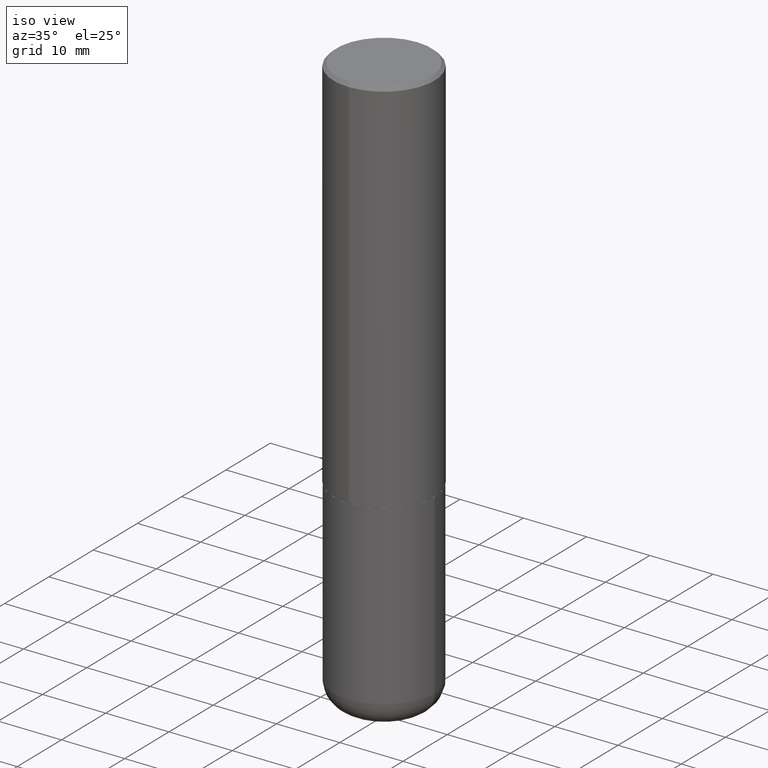
[diagram: clean part render]
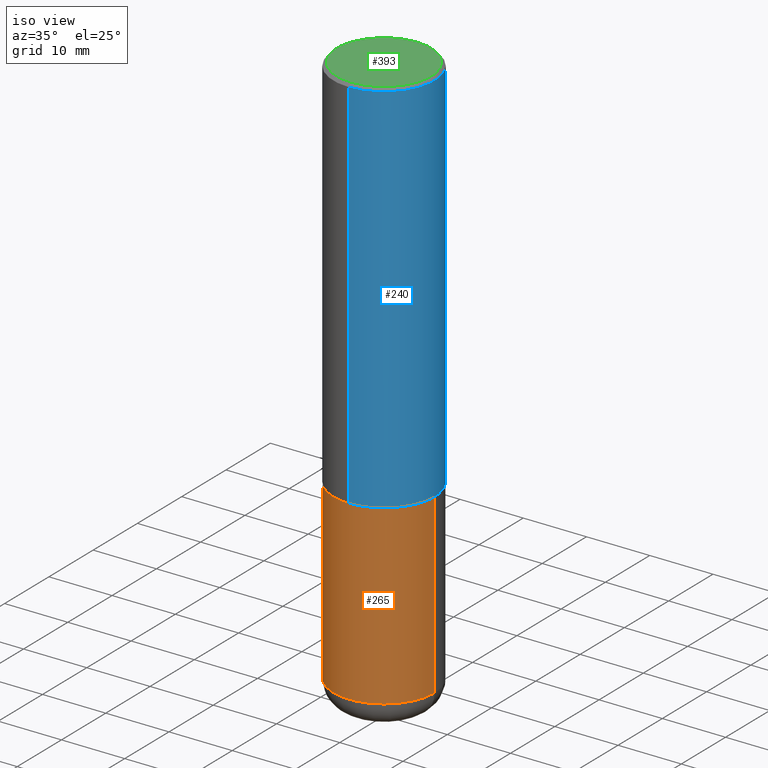
[diagram: same view with three faces highlighted in distinct colors, each labeled with its STEP entity id]
A machine part, iso view with three faces highlighted in distinct colors.
Their STEP definitions:

[orange] entity #265 — the highlighted cylindrical surface (partial cylindrical patch) has radius 7.9997 mm, axis along (-0, 0, 1).
#18 = VERTEX_POINT ( 'NONE', #328 ) ;
#39 = VERTEX_POINT ( 'NONE', #395 ) ;
#42 = CYLINDRICAL_SURFACE ( 'NONE', #179, 0.3149500000000000077 ) ;
#54 = CIRCLE ( 'NONE', #283, 0.3149500000000000632 ) ;
#58 = CARTESIAN_POINT ( 'NONE',  ( 5.776686413970529753E-29, -8.247577218615278049E-15, -2.362199999999999633 ) ) ;
#60 = VECTOR ( 'NONE', #163, 39.37007874015748143 ) ;
#96 = DIRECTION ( 'NONE',  ( -2.445468806185136597E-29, 3.491481338843145583E-15, 1.000000000000000000 ) ) ;
#99 = EDGE_CURVE ( 'NONE', #356, #18, #297, .T. ) ;
#102 = CARTESIAN_POINT ( 'NONE',  ( 0.000000000000000000, 0.000000000000000000, 0.000000000000000000 ) ) ;
#105 = DIRECTION ( 'NONE',  ( 1.000000000000000000, -6.982962677686266711E-15, 4.876176775795936353E-29 ) ) ;
#106 = LINE ( 'NONE', #144, #327 ) ;
#114 = EDGE_CURVE ( 'NONE', #125, #356, #54, .T. ) ;
#119 = CIRCLE ( 'NONE', #354, 0.3149500000000000077 ) ;
#122 = ORIENTED_EDGE ( 'NONE', *, *, #204, .F. ) ;
#125 = VERTEX_POINT ( 'NONE', #309 ) ;
#130 = DIRECTION ( 'NONE',  ( -2.445468806185136597E-29, 3.491481338843145583E-15, 1.000000000000000000 ) ) ;
#132 = ORIENTED_EDGE ( 'NONE', *, *, #114, .T. ) ;
#144 = CARTESIAN_POINT ( 'NONE',  ( -0.3149500000000000077, 2.237854346276435590E-15, -1.549218606675782676E-29 ) ) ;
#163 = DIRECTION ( 'NONE',  ( -2.445468806185136877E-29, 3.491481338843145188E-15, 1.000000000000000000 ) ) ;
#179 = AXIS2_PLACEMENT_3D ( 'NONE', #102, #130, #105 ) ;
#185 = DIRECTION ( 'NONE',  ( -2.445468806185136597E-29, 3.491481338843145583E-15, 1.000000000000000000 ) ) ;
#192 = ORIENTED_EDGE ( 'NONE', *, *, #99, .T. ) ;
#198 = CARTESIAN_POINT ( 'NONE',  ( 8.472326679028403758E-29, -1.209623709842207549E-14, -3.464499999999999247 ) ) ;
#204 = EDGE_CURVE ( 'NONE', #125, #39, #106, .T. ) ;
#211 = ORIENTED_EDGE ( 'NONE', *, *, #396, .F. ) ;
#226 = DIRECTION ( 'NONE',  ( 1.000000000000000000, -6.982962677686268288E-15, 0.000000000000000000 ) ) ;
#254 = EDGE_LOOP ( 'NONE', ( #122, #132, #192, #211 ) ) ;
#265 = ADVANCED_FACE ( 'NONE', ( #302 ), #42, .T. ) ;
#283 = AXIS2_PLACEMENT_3D ( 'NONE', #198, #96, #226 ) ;
#284 = CARTESIAN_POINT ( 'NONE',  ( 0.3149500000000001743, -1.429552119375936694E-14, -3.464499999999999247 ) ) ;
#297 = LINE ( 'NONE', #398, #60 ) ;
#302 = FACE_OUTER_BOUND ( 'NONE', #254, .T. ) ;
#309 = CARTESIAN_POINT ( 'NONE',  ( -0.3149500000000001743, -9.858382752145637926E-15, -3.464499999999999247 ) ) ;
#327 = VECTOR ( 'NONE', #345, 39.37007874015748143 ) ;
#328 = CARTESIAN_POINT ( 'NONE',  ( 0.3149500000000000077, -1.044686131395256792E-14, -2.362199999999999633 ) ) ;
#345 = DIRECTION ( 'NONE',  ( -2.445468806185136877E-29, 3.491481338843145188E-15, 1.000000000000000000 ) ) ;
#354 = AXIS2_PLACEMENT_3D ( 'NONE', #58, #185, #380 ) ;
#356 = VERTEX_POINT ( 'NONE', #284 ) ;
#380 = DIRECTION ( 'NONE',  ( 1.000000000000000000, -6.982962677686266711E-15, 0.000000000000000000 ) ) ;
#395 = CARTESIAN_POINT ( 'NONE',  ( -0.3149500000000000077, -7.934052812242240784E-15, -2.362199999999999633 ) ) ;
#396 = EDGE_CURVE ( 'NONE', #39, #18, #119, .T. ) ;
#398 = CARTESIAN_POINT ( 'NONE',  ( 0.3149500000000000077, -2.199284095337289871E-15, 1.535751875536930130E-29 ) ) ;

[blue] entity #240 — the highlighted cylindrical surface (partial cylindrical patch) has radius 7.9997 mm, axis along (-0, 0, 1).
#7 = VECTOR ( 'NONE', #64, 39.37007874015748143 ) ;
#14 = AXIS2_PLACEMENT_3D ( 'NONE', #271, #21, #133 ) ;
#21 = DIRECTION ( 'NONE',  ( -2.443050816129427755E-29, 3.494944038226367750E-15, 1.000000000000000000 ) ) ;
#30 = AXIS2_PLACEMENT_3D ( 'NONE', #372, #171, #67 ) ;
#40 = CARTESIAN_POINT ( 'NONE',  ( 2.199284095337290265E-15, 0.3149500000000000077, -0.02000000000000118697 ) ) ;
#52 = FACE_OUTER_BOUND ( 'NONE', #182, .T. ) ;
#64 = DIRECTION ( 'NONE',  ( -2.443050816129427755E-29, 3.494944038226367750E-15, 1.000000000000000000 ) ) ;
#67 = DIRECTION ( 'NONE',  ( -6.982962677686265922E-15, -1.000000000000000000, 3.496670018878888311E-15 ) ) ;
#77 = EDGE_CURVE ( 'NONE', #85, #93, #402, .T. ) ;
#78 = CYLINDRICAL_SURFACE ( 'NONE', #409, 0.3149500000000001743 ) ;
#85 = VERTEX_POINT ( 'NONE', #236 ) ;
#88 = CARTESIAN_POINT ( 'NONE',  ( -2.199284095337233467E-15, -0.3149500000000085564, -2.361199999999998411 ) ) ;
#93 = VERTEX_POINT ( 'NONE', #40 ) ;
#97 = CIRCLE ( 'NONE', #30, 0.3149500000000000632 ) ;
#123 = EDGE_CURVE ( 'NONE', #321, #93, #97, .T. ) ;
#133 = DIRECTION ( 'NONE',  ( -6.982962677686265922E-15, -1.000000000000000000, 3.469564049740290009E-15 ) ) ;
#171 = DIRECTION ( 'NONE',  ( -2.443050816129427755E-29, 3.494944038226367750E-15, 1.000000000000000000 ) ) ;
#177 = CARTESIAN_POINT ( 'NONE',  ( -2.160713844398143757E-15, -0.3149500000000001743, -0.01999999999999898387 ) ) ;
#182 = EDGE_LOOP ( 'NONE', ( #404, #209, #303, #361 ) ) ;
#189 = CIRCLE ( 'NONE', #14, 0.3149500000000002853 ) ;
#197 = CARTESIAN_POINT ( 'NONE',  ( 0.000000000000000000, 0.000000000000000000, 0.000000000000000000 ) ) ;
#203 = DIRECTION ( 'NONE',  ( -2.443050816129427755E-29, 3.494944038226367750E-15, 1.000000000000000000 ) ) ;
#209 = ORIENTED_EDGE ( 'NONE', *, *, #77, .T. ) ;
#223 = CARTESIAN_POINT ( 'NONE',  ( 2.237854346276435985E-15, 0.3149500000000001743, -1.100732624839394981E-15 ) ) ;
#236 = CARTESIAN_POINT ( 'NONE',  ( 2.237854346276465567E-15, 0.3149499999999920141, -2.361200000000000632 ) ) ;
#237 = VECTOR ( 'NONE', #245, 39.37007874015748143 ) ;
#240 = ADVANCED_FACE ( 'NONE', ( #52 ), #78, .T. ) ;
#245 = DIRECTION ( 'NONE',  ( -2.443050816129427755E-29, 3.494944038226367750E-15, 1.000000000000000000 ) ) ;
#271 = CARTESIAN_POINT ( 'NONE',  ( 5.768531587044804082E-29, -8.252261863060098117E-15, -2.361199999999999299 ) ) ;
#292 = LINE ( 'NONE', #412, #237 ) ;
#303 = ORIENTED_EDGE ( 'NONE', *, *, #123, .F. ) ;
#315 = DIRECTION ( 'NONE',  ( -6.982962677686264344E-15, -1.000000000000000000, 3.494944038226367355E-15 ) ) ;
#321 = VERTEX_POINT ( 'NONE', #177 ) ;
#361 = ORIENTED_EDGE ( 'NONE', *, *, #406, .F. ) ;
#367 = VERTEX_POINT ( 'NONE', #88 ) ;
#372 = CARTESIAN_POINT ( 'NONE',  ( 4.886101632258876704E-31, -6.989888076452765624E-17, -0.02000000000000008715 ) ) ;
#399 = EDGE_CURVE ( 'NONE', #367, #85, #189, .T. ) ;
#402 = LINE ( 'NONE', #223, #7 ) ;
#404 = ORIENTED_EDGE ( 'NONE', *, *, #399, .T. ) ;
#406 = EDGE_CURVE ( 'NONE', #367, #321, #292, .T. ) ;
#409 = AXIS2_PLACEMENT_3D ( 'NONE', #197, #203, #315 ) ;
#412 = CARTESIAN_POINT ( 'NONE',  ( -2.199284095337290265E-15, -0.3149500000000001743, 1.100732624839394981E-15 ) ) ;

[green] entity #393 — the highlighted planar face has unit normal (0, -0, -1).
#9 = PLANE ( 'NONE',  #388 ) ;
#24 = DIRECTION ( 'NONE',  ( -6.982962677686265133E-15, -1.000000000000000000, 3.494944038226367750E-15 ) ) ;
#49 = CARTESIAN_POINT ( 'NONE',  ( -2.092108864420429609E-15, -0.2949500000000003785, 7.714758053618247912E-16 ) ) ;
#61 = ORIENTED_EDGE ( 'NONE', *, *, #351, .T. ) ;
#75 = CIRCLE ( 'NONE', #206, 0.2949500000000003785 ) ;
#117 = VERTEX_POINT ( 'NONE', #49 ) ;
#121 = DIRECTION ( 'NONE',  ( 6.982962677686265922E-15, 1.000000000000000000, -3.494944038226367750E-15 ) ) ;
#126 = CARTESIAN_POINT ( 'NONE',  ( 2.059624841783566430E-15, 0.2949500000000003785, -1.160512713431390225E-15 ) ) ;
#134 = CARTESIAN_POINT ( 'NONE',  ( 2.129454468560428545E-15, 0.2949500000000003785, -1.290191682787912004E-15 ) ) ;
#147 = VERTEX_POINT ( 'NONE', #134 ) ;
#148 = DIRECTION ( 'NONE',  ( -2.443050816129427755E-29, 3.494944038226367750E-15, 1.000000000000000000 ) ) ;
#206 = AXIS2_PLACEMENT_3D ( 'NONE', #322, #148, #413 ) ;
#229 = AXIS2_PLACEMENT_3D ( 'NONE', #311, #270, #24 ) ;
#252 = ORIENTED_EDGE ( 'NONE', *, *, #319, .T. ) ;
#270 = DIRECTION ( 'NONE',  ( -2.443050816129427755E-29, 3.494944038226367750E-15, 1.000000000000000000 ) ) ;
#287 = EDGE_LOOP ( 'NONE', ( #252, #61 ) ) ;
#291 = FACE_OUTER_BOUND ( 'NONE', #287, .T. ) ;
#296 = DIRECTION ( 'NONE',  ( 2.443050816129427475E-29, -3.494944038226367750E-15, -1.000000000000000000 ) ) ;
#311 = CARTESIAN_POINT ( 'NONE',  ( 6.336246238425474629E-45, -9.064414816718317590E-31, -2.593579387130437049E-16 ) ) ;
#319 = EDGE_CURVE ( 'NONE', #147, #117, #333, .T. ) ;
#322 = CARTESIAN_POINT ( 'NONE',  ( 6.336246238425474629E-45, -9.064414816718317590E-31, -2.593579387130437049E-16 ) ) ;
#333 = CIRCLE ( 'NONE', #229, 0.2949500000000003785 ) ;
#351 = EDGE_CURVE ( 'NONE', #117, #147, #75, .T. ) ;
#388 = AXIS2_PLACEMENT_3D ( 'NONE', #126, #296, #121 ) ;
#393 = ADVANCED_FACE ( 'NONE', ( #291 ), #9, .F. ) ;
#413 = DIRECTION ( 'NONE',  ( -6.982962677686265133E-15, -1.000000000000000000, 3.494944038226367750E-15 ) ) ;